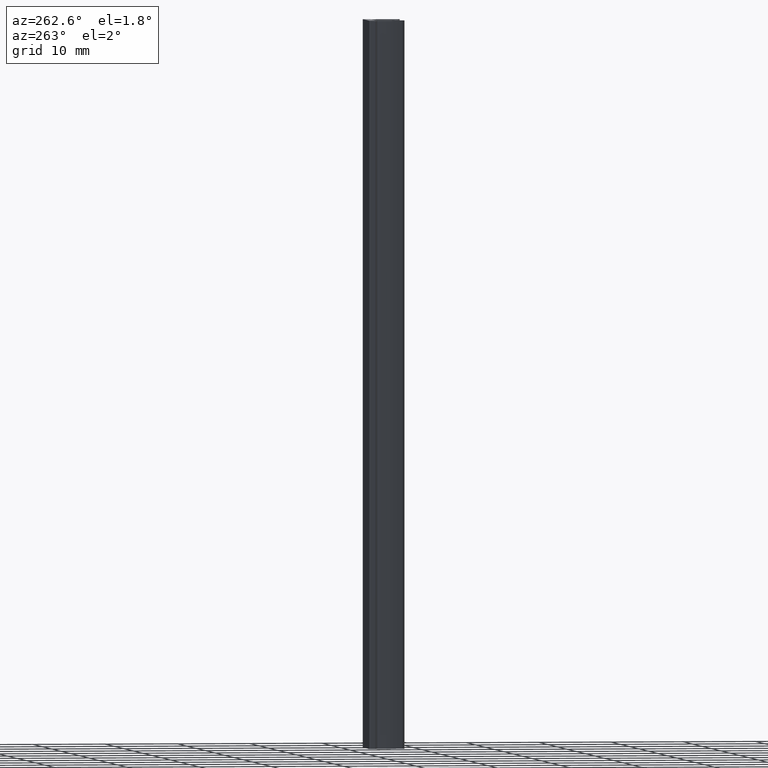
[diagram: clean part render]
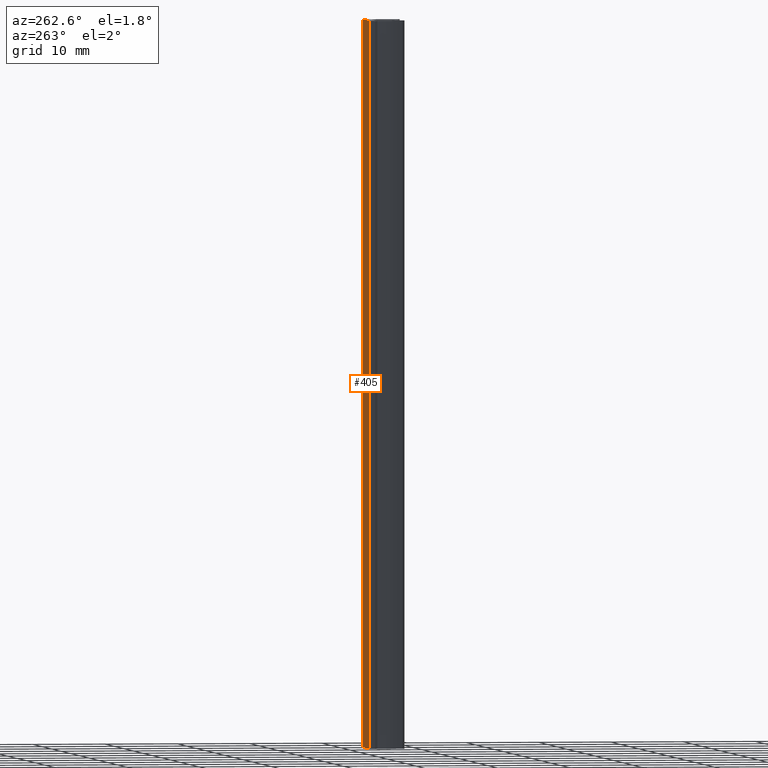
[diagram: same view with one face highlighted and labeled with its STEP entity id]
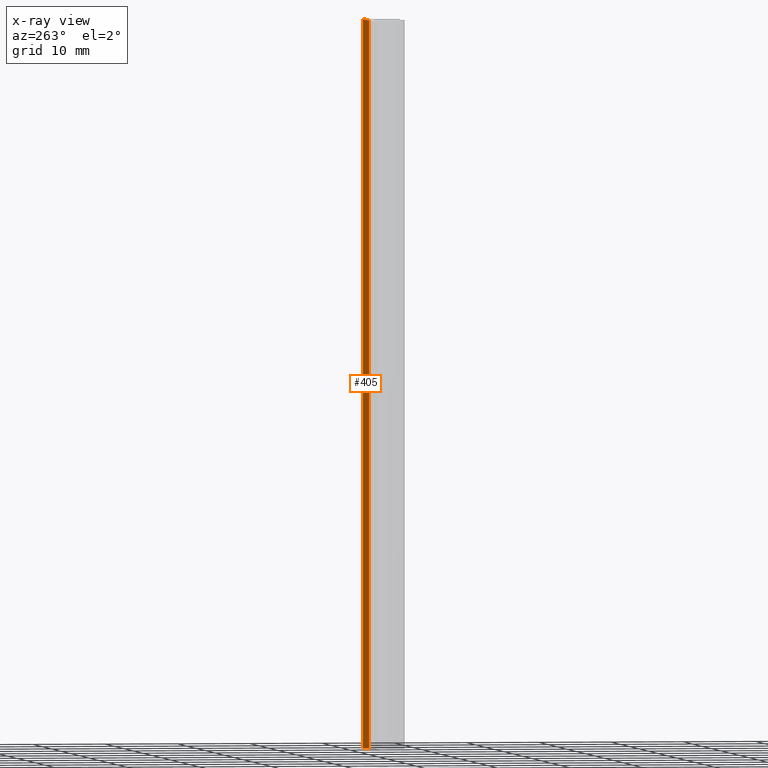
[diagram: x-ray of the same camera — body ghosted, the highlighted face saturated]
A machine part, auxiliary view. The second image highlights one B-rep face of the part: STEP entity #405.
The next image is the same camera in x-ray: the body ghosted, the highlighted face saturated — about 0% of this face is hidden behind the body in this view.
In plain terms, the highlighted planar face has unit normal (0, 1, 0).
Its self-contained STEP definition (entity closure, byte-faithful):
#19=PLANE('',#469);
#35=FACE_OUTER_BOUND('',#57,.T.);
#57=EDGE_LOOP('',(#323,#324,#325,#326));
#89=LINE('',#707,#121);
#90=LINE('',#711,#122);
#91=LINE('',#715,#123);
#92=LINE('',#716,#124);
#121=VECTOR('',#571,10.);
#122=VECTOR('',#576,10.);
#123=VECTOR('',#581,10.);
#124=VECTOR('',#582,10.);
#191=VERTEX_POINT('',#704);
#192=VERTEX_POINT('',#706);
#193=VERTEX_POINT('',#710);
#194=VERTEX_POINT('',#714);
#241=EDGE_CURVE('',#191,#192,#89,.T.);
#243=EDGE_CURVE('',#192,#193,#90,.T.);
#245=EDGE_CURVE('',#194,#191,#91,.T.);
#246=EDGE_CURVE('',#193,#194,#92,.T.);
#323=ORIENTED_EDGE('',*,*,#243,.F.);
#324=ORIENTED_EDGE('',*,*,#241,.F.);
#325=ORIENTED_EDGE('',*,*,#245,.F.);
#326=ORIENTED_EDGE('',*,*,#246,.F.);
#405=ADVANCED_FACE('',(#35),#19,.T.);
#469=AXIS2_PLACEMENT_3D('',#713,#579,#580);
#571=DIRECTION('',(-1.,0.,0.));
#576=DIRECTION('',(0.,0.,-1.));
#579=DIRECTION('center_axis',(0.,1.,0.));
#580=DIRECTION('ref_axis',(-1.,0.,0.));
#581=DIRECTION('',(0.,0.,1.));
#582=DIRECTION('',(1.,0.,0.));
#704=CARTESIAN_POINT('',(3.4,3.,100.));
#706=CARTESIAN_POINT('',(-3.4,3.,100.));
#707=CARTESIAN_POINT('',(-3.6,3.,100.));
#710=CARTESIAN_POINT('',(-3.4,3.,0.));
#711=CARTESIAN_POINT('',(-3.4,3.,0.));
#713=CARTESIAN_POINT('Origin',(3.6,3.,0.));
#714=CARTESIAN_POINT('',(3.4,3.,0.));
#715=CARTESIAN_POINT('',(3.4,3.,0.));
#716=CARTESIAN_POINT('',(-3.6,3.,0.));